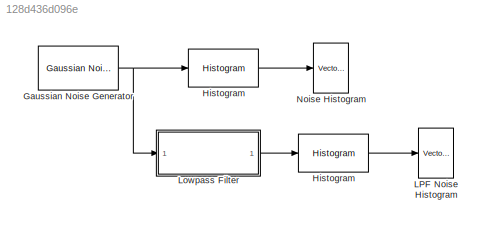
MODEL slx_128d436d096e
KIND model
BLOCK [Reference] Gaussian Noise Generator  REF=commnoisgen2/Gaussian Noise
Generator
  Ports = [0, 1]
  SourceBlock = commnoisgen2/Gaussian Noise\nGenerator
  SourceType = Gaussian Noise Generator
  Ts = 2e-5
  d = 1
  frameBased = off
  m = 10
  orient = on
  outDataType = double
  s = randseed
  sampPerFrame = 1
BLOCK [Reference] Histogram  REF=dspstat3/Histogram
  Dimension = 1
  LockScale = off
  Ports = [1, 1]
  SourceBlock = dspstat3/Histogram
  SourceType = Histogram
  UserDataPersistent = on
  accumDataTypeStr = Inherit: Same as input
  accumFracLength = 30
  accumLastDataTypeStr = Inherit: Same as input
  accumMode = Same as input
  accumWordLength = 32
  additionalParams = off
  allowOverrides = on
  colComp = on
  nbins = 101
  normalized = off
  operateOver = Inherited (this choice will be removed - see release notes)
  overflowMode = off
  prodOutputDataTypeStr = Inherit: Same as input
  prodOutputFracLength = 30
  prodOutputLastDataTypeStr = Inherit: Same as input
  prodOutputMode = Same as input
  prodOutputWordLength = 32
  reset = on
  roundingMode = Floor
  run = on
  trigtype = None
  umax = 20
  umin = 0
BLOCK [Reference] Histogram   REF=dspstat3/Histogram
  Dimension = 1
  LockScale = off
  Ports = [1, 1]
  SourceBlock = dspstat3/Histogram
  SourceType = Histogram
  UserDataPersistent = on
  accumDataTypeStr = Inherit: Same as input
  accumFracLength = 30
  accumLastDataTypeStr = Inherit: Same as input
  accumMode = Same as input
  accumWordLength = 32
  additionalParams = off
  allowOverrides = on
  colComp = on
  nbins = 101
  normalized = off
  operateOver = Inherited (this choice will be removed - see release notes)
  overflowMode = off
  prodOutputDataTypeStr = Inherit: Same as input
  prodOutputFracLength = 30
  prodOutputLastDataTypeStr = Inherit: Same as input
  prodOutputMode = Same as input
  prodOutputWordLength = 32
  reset = on
  roundingMode = Floor
  run = on
  trigtype = None
  umax = 20
  umin = 0
BLOCK [Reference] LPF Noise Histogram  REF=dspsnks4/Vector
Scope
  AxisGrid = on
  AxisLegend = off
  AxisProperties = off
  AxisZoom = off
  DisplayProperties = off
  Domain = User-defined
  FigPos = get(0,'defaultfigureposition')
  FrameNumber = on
  HorizSpan = 1
  InheritXIncr = on
  LineMarkers = o
  LineProperties = off
  Memory = off
  OpenScopeAtSimStart = on
  OpenScopeImmediately = off
  Ports = [1]
  ScopeProperties = on
  ShowPortLabels = off
  SourceBlock = dspsnks4/Vector\nScope
  SourceType = Vector Scope
  XAxisParamsVer = 6.9
  XIncr = 1
  XLabel = Value
  XLimit = Auto
  XMax = 1
  XMin = 0
  XRange = [0...Fs/2]
  XStart = 0
  XUnits = Hertz
  YLabel = Histogram
  YMax = 10000
  YMin = 0
  YUnits = dB
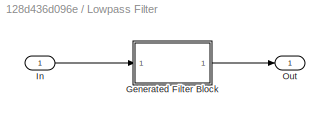
BLOCK [SubSystem] Lowpass Filter
  CopyFcn = fdesignblkfcn(gcbh, {'CopyFcn'});
  DialogController = fdesignblkfcn
  InitFcn = fdesignblkfcn(gcbh, {'InitFcn'});
  Ports = [1, 1]
  RequestExecContextInheritance = off
  UserDataPersistent = on
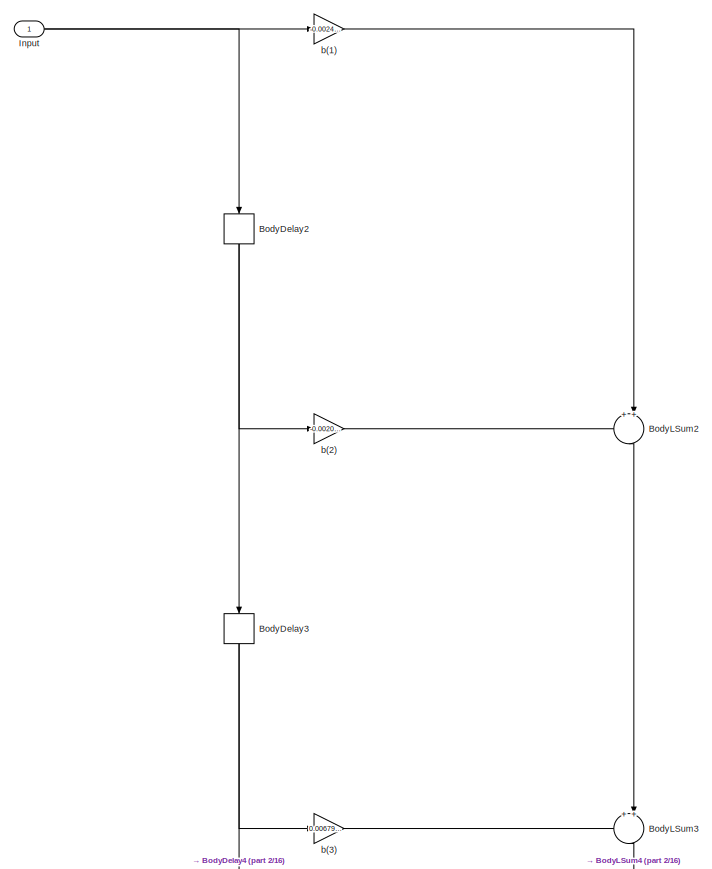
[diagram: Lowpass Filter/Generated Filter Block - part 1/16, full width, top band]
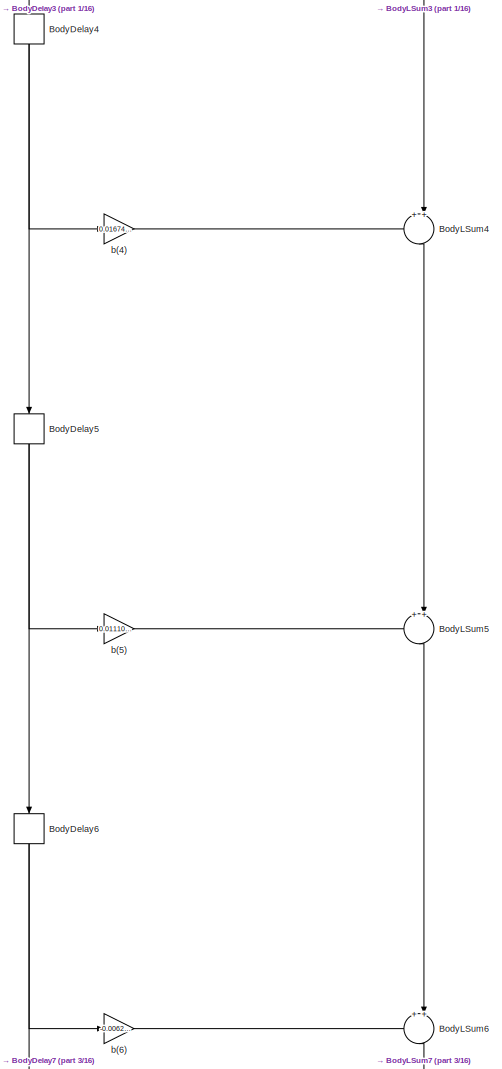
[diagram: Lowpass Filter/Generated Filter Block - part 2/16, top center region]
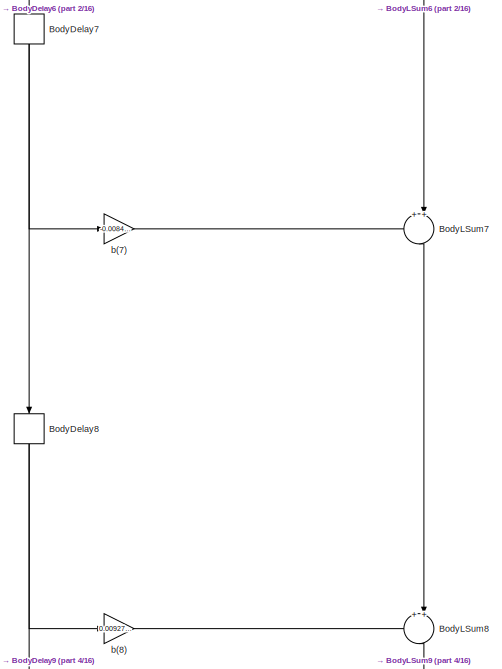
[diagram: Lowpass Filter/Generated Filter Block - part 3/16, top center region]
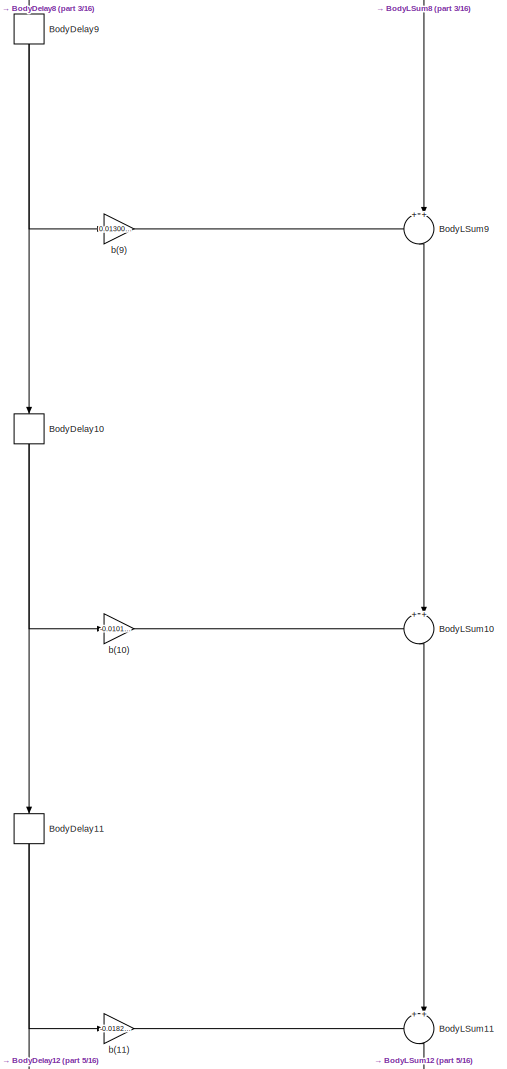
[diagram: Lowpass Filter/Generated Filter Block - part 4/16, top center region]
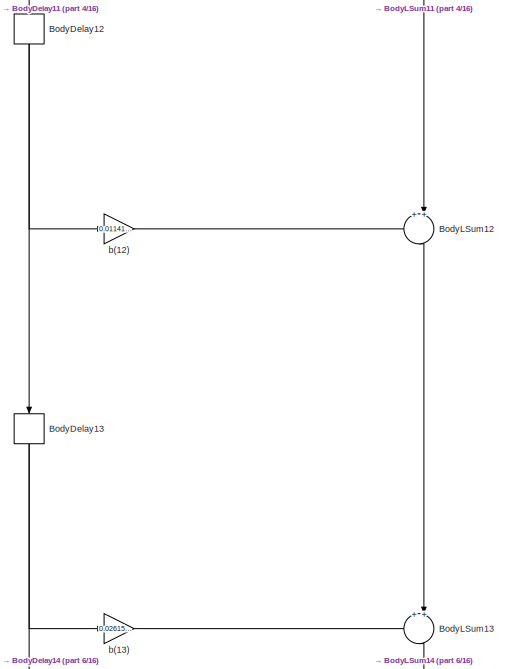
[diagram: Lowpass Filter/Generated Filter Block - part 5/16, top center region]
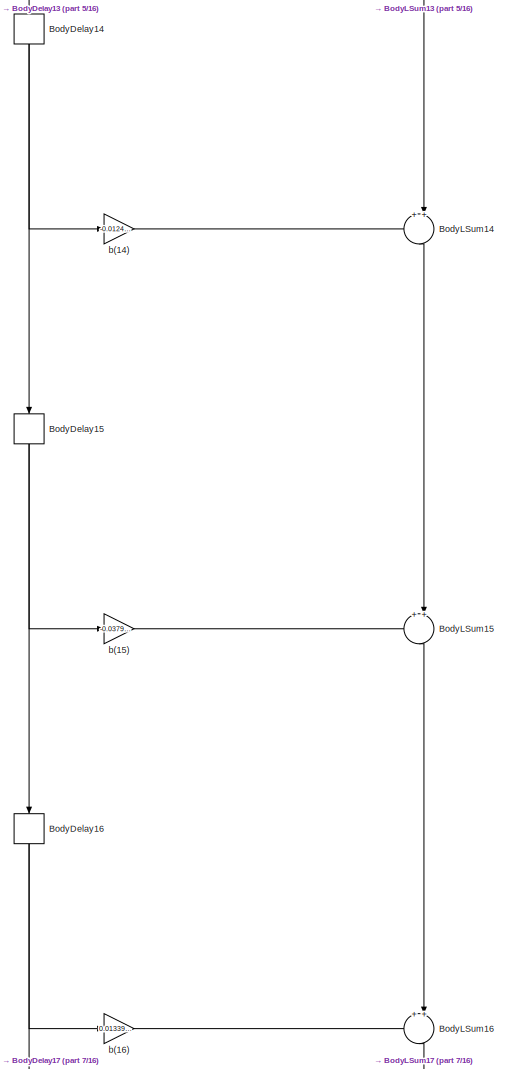
[diagram: Lowpass Filter/Generated Filter Block - part 6/16, top center region]
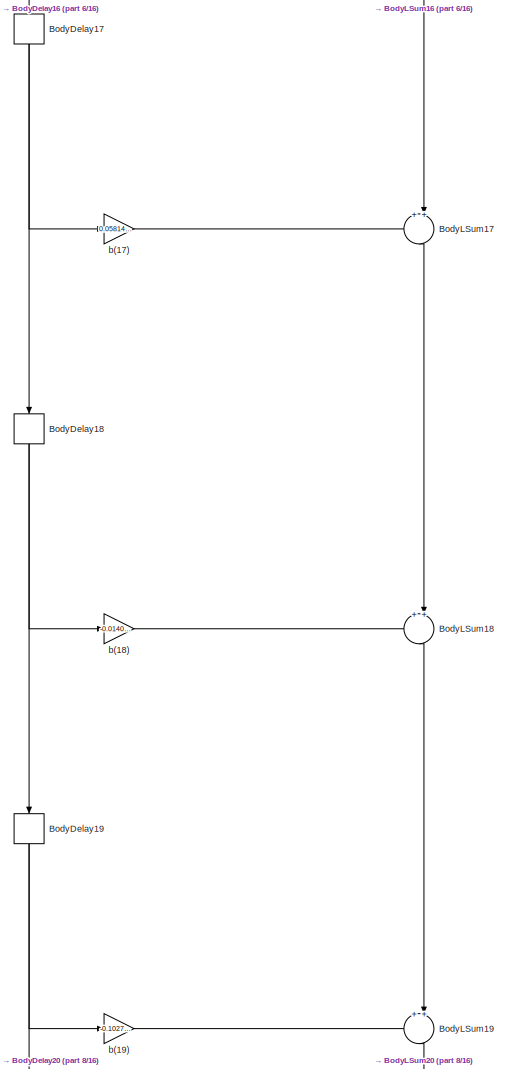
[diagram: Lowpass Filter/Generated Filter Block - part 7/16, central region]
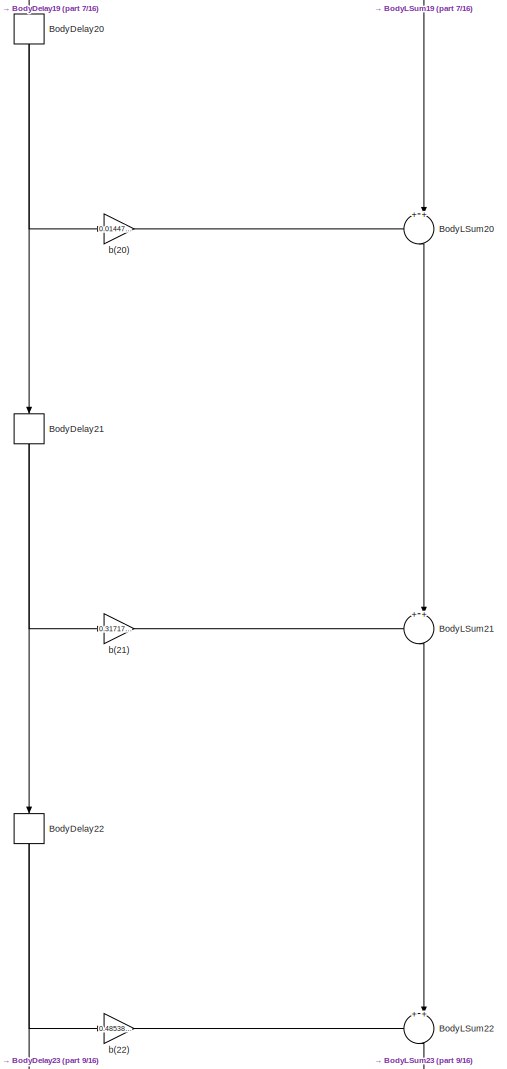
[diagram: Lowpass Filter/Generated Filter Block - part 8/16, central region]
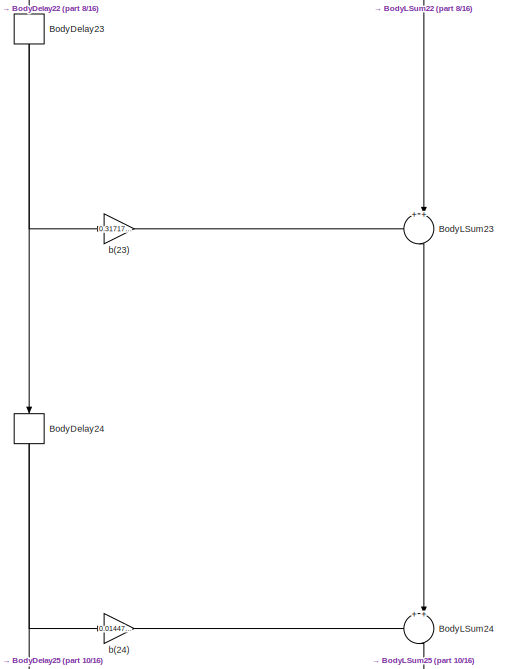
[diagram: Lowpass Filter/Generated Filter Block - part 9/16, central region]
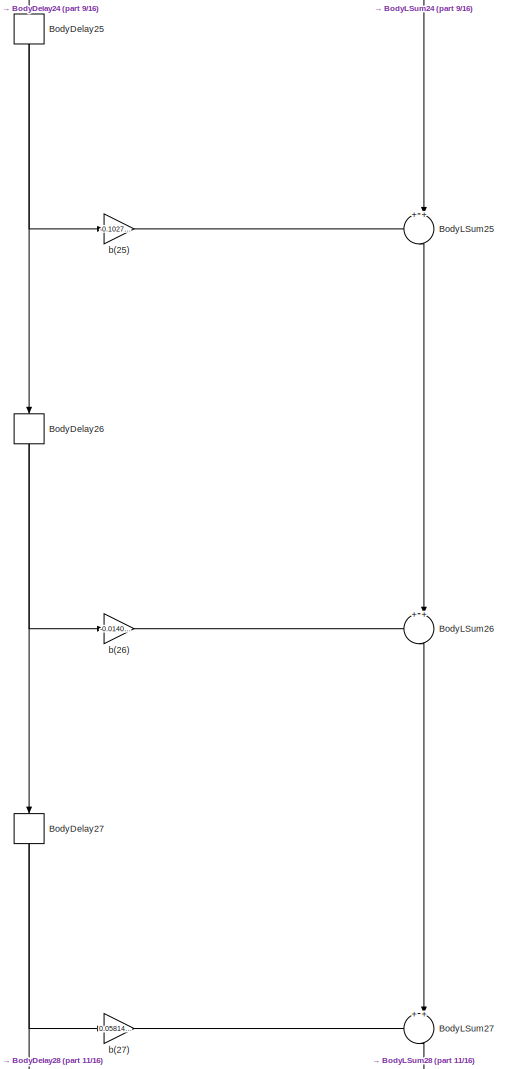
[diagram: Lowpass Filter/Generated Filter Block - part 10/16, central region]
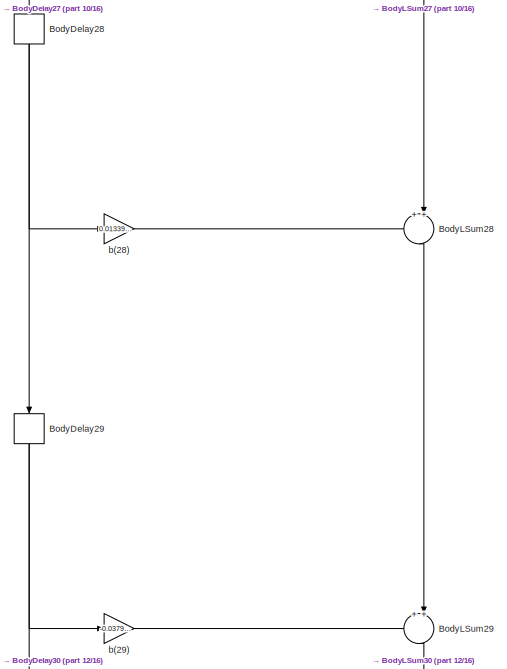
[diagram: Lowpass Filter/Generated Filter Block - part 11/16, central region]
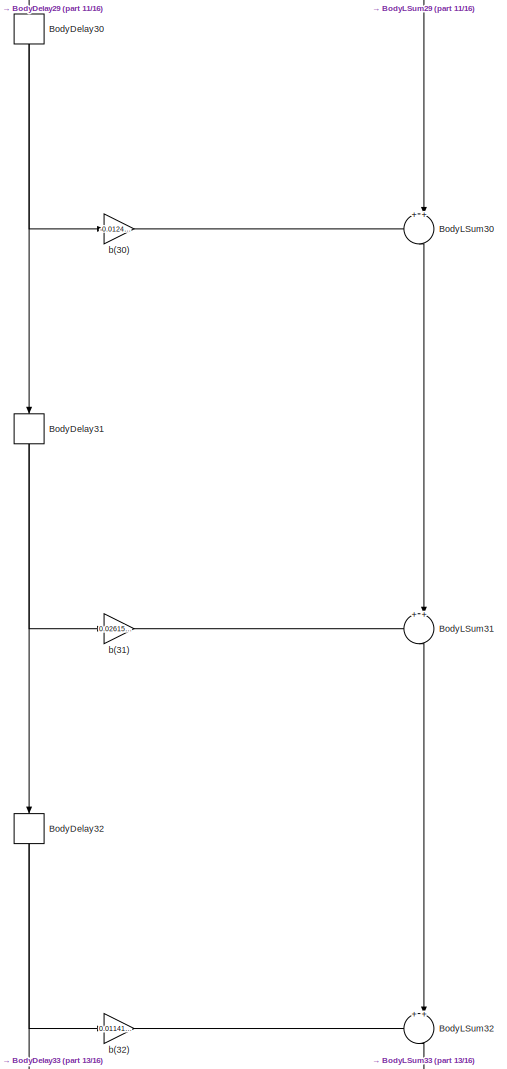
[diagram: Lowpass Filter/Generated Filter Block - part 12/16, bottom center region]
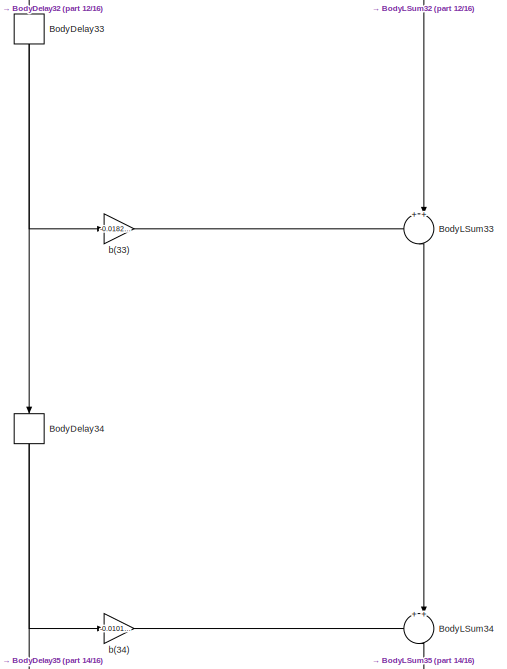
[diagram: Lowpass Filter/Generated Filter Block - part 13/16, bottom center region]
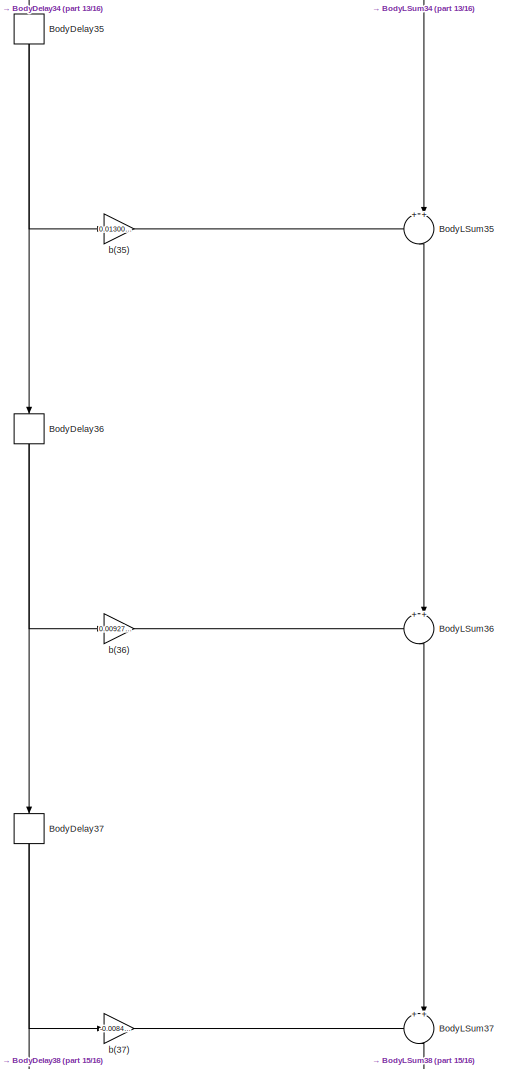
[diagram: Lowpass Filter/Generated Filter Block - part 14/16, bottom center region]
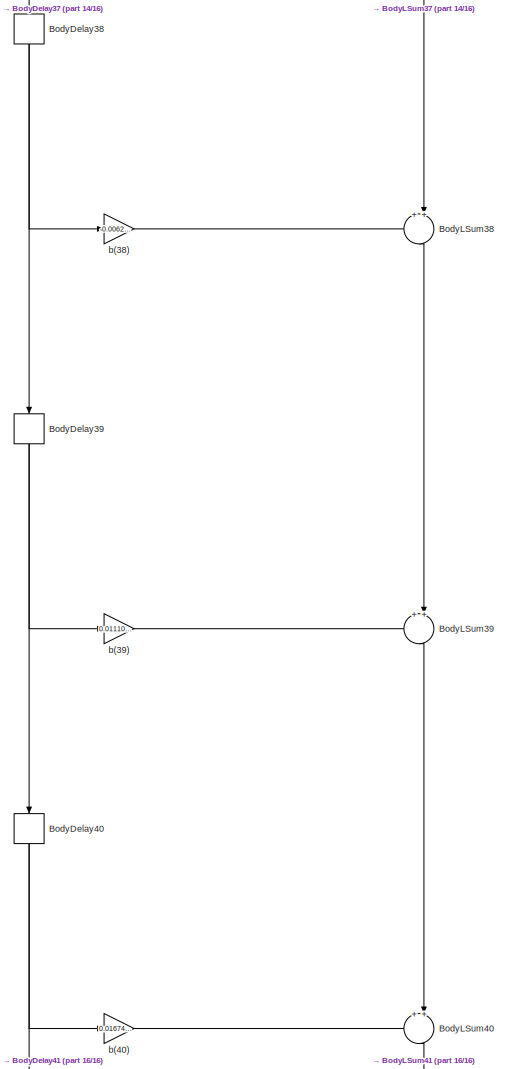
[diagram: Lowpass Filter/Generated Filter Block - part 15/16, bottom center region]
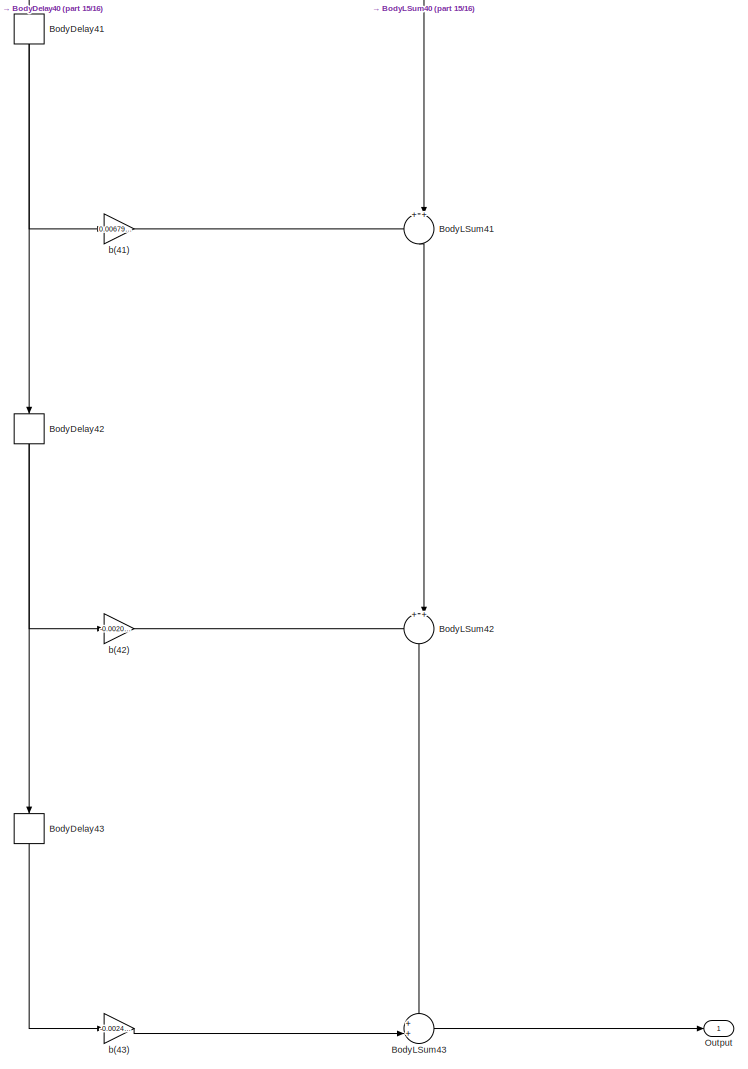
[diagram: Lowpass Filter/Generated Filter Block - part 16/16, full width, bottom band]
BLOCK [SubSystem] Lowpass Filter/Generated Filter Block
  ErrorFcn = dspFilterRealizedInBasicElemsAlgLoopErrFcnCallback
  Ports = [1, 1]
  RequestExecContextInheritance = off
  Tag = FilterWizardSubSystem
  UserDataPersistent = on
BLOCK [Delay] Lowpass Filter/Generated Filter Block/BodyDelay10
  DelayLength = 1
  InitialCondition = 0
  InputPortMap = u0
  InputProcessing = Inherited
  Ports = [1, 1]
BLOCK [Delay] Lowpass Filter/Generated Filter Block/BodyDelay11
  DelayLength = 1
  InitialCondition = 0
  InputPortMap = u0
  InputProcessing = Inherited
  Ports = [1, 1]
BLOCK [Delay] Lowpass Filter/Generated Filter Block/BodyDelay12
  DelayLength = 1
  InitialCondition = 0
  InputPortMap = u0
  InputProcessing = Inherited
  Ports = [1, 1]
BLOCK [Delay] Lowpass Filter/Generated Filter Block/BodyDelay13
  DelayLength = 1
  InitialCondition = 0
  InputPortMap = u0
  InputProcessing = Inherited
  Ports = [1, 1]
BLOCK [Delay] Lowpass Filter/Generated Filter Block/BodyDelay14
  DelayLength = 1
  InitialCondition = 0
  InputPortMap = u0
  InputProcessing = Inherited
  Ports = [1, 1]
BLOCK [Delay] Lowpass Filter/Generated Filter Block/BodyDelay15
  DelayLength = 1
  InitialCondition = 0
  InputPortMap = u0
  InputProcessing = Inherited
  Ports = [1, 1]
BLOCK [Delay] Lowpass Filter/Generated Filter Block/BodyDelay16
  DelayLength = 1
  InitialCondition = 0
  InputPortMap = u0
  InputProcessing = Inherited
  Ports = [1, 1]
BLOCK [Delay] Lowpass Filter/Generated Filter Block/BodyDelay17
  DelayLength = 1
  InitialCondition = 0
  InputPortMap = u0
  InputProcessing = Inherited
  Ports = [1, 1]
BLOCK [Delay] Lowpass Filter/Generated Filter Block/BodyDelay18
  DelayLength = 1
  InitialCondition = 0
  InputPortMap = u0
  InputProcessing = Inherited
  Ports = [1, 1]
BLOCK [Delay] Lowpass Filter/Generated Filter Block/BodyDelay19
  DelayLength = 1
  InitialCondition = 0
  InputPortMap = u0
  InputProcessing = Inherited
  Ports = [1, 1]
BLOCK [Delay] Lowpass Filter/Generated Filter Block/BodyDelay2
  DelayLength = 1
  InitialCondition = 0
  InputPortMap = u0
  InputProcessing = Inherited
  Ports = [1, 1]
BLOCK [Delay] Lowpass Filter/Generated Filter Block/BodyDelay20
  DelayLength = 1
  InitialCondition = 0
  InputPortMap = u0
  InputProcessing = Inherited
  Ports = [1, 1]
BLOCK [Delay] Lowpass Filter/Generated Filter Block/BodyDelay21
  DelayLength = 1
  InitialCondition = 0
  InputPortMap = u0
  InputProcessing = Inherited
  Ports = [1, 1]
BLOCK [Delay] Lowpass Filter/Generated Filter Block/BodyDelay22
  DelayLength = 1
  InitialCondition = 0
  InputPortMap = u0
  InputProcessing = Inherited
  Ports = [1, 1]
BLOCK [Delay] Lowpass Filter/Generated Filter Block/BodyDelay23
  DelayLength = 1
  InitialCondition = 0
  InputPortMap = u0
  InputProcessing = Inherited
  Ports = [1, 1]
BLOCK [Delay] Lowpass Filter/Generated Filter Block/BodyDelay24
  DelayLength = 1
  InitialCondition = 0
  InputPortMap = u0
  InputProcessing = Inherited
  Ports = [1, 1]
BLOCK [Delay] Lowpass Filter/Generated Filter Block/BodyDelay25
  DelayLength = 1
  InitialCondition = 0
  InputPortMap = u0
  InputProcessing = Inherited
  Ports = [1, 1]
BLOCK [Delay] Lowpass Filter/Generated Filter Block/BodyDelay26
  DelayLength = 1
  InitialCondition = 0
  InputPortMap = u0
  InputProcessing = Inherited
  Ports = [1, 1]
BLOCK [Delay] Lowpass Filter/Generated Filter Block/BodyDelay27
  DelayLength = 1
  InitialCondition = 0
  InputPortMap = u0
  InputProcessing = Inherited
  Ports = [1, 1]
BLOCK [Delay] Lowpass Filter/Generated Filter Block/BodyDelay28
  DelayLength = 1
  InitialCondition = 0
  InputPortMap = u0
  InputProcessing = Inherited
  Ports = [1, 1]
BLOCK [Delay] Lowpass Filter/Generated Filter Block/BodyDelay29
  DelayLength = 1
  InitialCondition = 0
  InputPortMap = u0
  InputProcessing = Inherited
  Ports = [1, 1]
BLOCK [Delay] Lowpass Filter/Generated Filter Block/BodyDelay3
  DelayLength = 1
  InitialCondition = 0
  InputPortMap = u0
  InputProcessing = Inherited
  Ports = [1, 1]
BLOCK [Delay] Lowpass Filter/Generated Filter Block/BodyDelay30
  DelayLength = 1
  InitialCondition = 0
  InputPortMap = u0
  InputProcessing = Inherited
  Ports = [1, 1]
BLOCK [Delay] Lowpass Filter/Generated Filter Block/BodyDelay31
  DelayLength = 1
  InitialCondition = 0
  InputPortMap = u0
  InputProcessing = Inherited
  Ports = [1, 1]
BLOCK [Delay] Lowpass Filter/Generated Filter Block/BodyDelay32
  DelayLength = 1
  InitialCondition = 0
  InputPortMap = u0
  InputProcessing = Inherited
  Ports = [1, 1]
BLOCK [Delay] Lowpass Filter/Generated Filter Block/BodyDelay33
  DelayLength = 1
  InitialCondition = 0
  InputPortMap = u0
  InputProcessing = Inherited
  Ports = [1, 1]
BLOCK [Delay] Lowpass Filter/Generated Filter Block/BodyDelay34
  DelayLength = 1
  InitialCondition = 0
  InputPortMap = u0
  InputProcessing = Inherited
  Ports = [1, 1]
BLOCK [Delay] Lowpass Filter/Generated Filter Block/BodyDelay35
  DelayLength = 1
  InitialCondition = 0
  InputPortMap = u0
  InputProcessing = Inherited
  Ports = [1, 1]
BLOCK [Delay] Lowpass Filter/Generated Filter Block/BodyDelay36
  DelayLength = 1
  InitialCondition = 0
  InputPortMap = u0
  InputProcessing = Inherited
  Ports = [1, 1]
BLOCK [Delay] Lowpass Filter/Generated Filter Block/BodyDelay37
  DelayLength = 1
  InitialCondition = 0
  InputPortMap = u0
  InputProcessing = Inherited
  Ports = [1, 1]
BLOCK [Delay] Lowpass Filter/Generated Filter Block/BodyDelay38
  DelayLength = 1
  InitialCondition = 0
  InputPortMap = u0
  InputProcessing = Inherited
  Ports = [1, 1]
BLOCK [Delay] Lowpass Filter/Generated Filter Block/BodyDelay39
  DelayLength = 1
  InitialCondition = 0
  InputPortMap = u0
  InputProcessing = Inherited
  Ports = [1, 1]
BLOCK [Delay] Lowpass Filter/Generated Filter Block/BodyDelay4
  DelayLength = 1
  InitialCondition = 0
  InputPortMap = u0
  InputProcessing = Inherited
  Ports = [1, 1]
BLOCK [Delay] Lowpass Filter/Generated Filter Block/BodyDelay40
  DelayLength = 1
  InitialCondition = 0
  InputPortMap = u0
  InputProcessing = Inherited
  Ports = [1, 1]
BLOCK [Delay] Lowpass Filter/Generated Filter Block/BodyDelay41
  DelayLength = 1
  InitialCondition = 0
  InputPortMap = u0
  InputProcessing = Inherited
  Ports = [1, 1]
BLOCK [Delay] Lowpass Filter/Generated Filter Block/BodyDelay42
  DelayLength = 1
  InitialCondition = 0
  InputPortMap = u0
  InputProcessing = Inherited
  Ports = [1, 1]
BLOCK [Delay] Lowpass Filter/Generated Filter Block/BodyDelay43
  DelayLength = 1
  InitialCondition = 0
  InputPortMap = u0
  InputProcessing = Inherited
  Ports = [1, 1]
BLOCK [Delay] Lowpass Filter/Generated Filter Block/BodyDelay5
  DelayLength = 1
  InitialCondition = 0
  InputPortMap = u0
  InputProcessing = Inherited
  Ports = [1, 1]
BLOCK [Delay] Lowpass Filter/Generated Filter Block/BodyDelay6
  DelayLength = 1
  InitialCondition = 0
  InputPortMap = u0
  InputProcessing = Inherited
  Ports = [1, 1]
BLOCK [Delay] Lowpass Filter/Generated Filter Block/BodyDelay7
  DelayLength = 1
  InitialCondition = 0
  InputPortMap = u0
  InputProcessing = Inherited
  Ports = [1, 1]
BLOCK [Delay] Lowpass Filter/Generated Filter Block/BodyDelay8
  DelayLength = 1
  InitialCondition = 0
  InputPortMap = u0
  InputProcessing = Inherited
  Ports = [1, 1]
BLOCK [Delay] Lowpass Filter/Generated Filter Block/BodyDelay9
  DelayLength = 1
  InitialCondition = 0
  InputPortMap = u0
  InputProcessing = Inherited
  Ports = [1, 1]
BLOCK [Sum] Lowpass Filter/Generated Filter Block/BodyLSum10
  IconShape = round
  InputSameDT = off
  Inputs = ++|
  Ports = [2, 1]
  RndMeth = Nearest
BLOCK [Sum] Lowpass Filter/Generated Filter Block/BodyLSum11
  IconShape = round
  InputSameDT = off
  Inputs = ++|
  Ports = [2, 1]
  RndMeth = Nearest
BLOCK [Sum] Lowpass Filter/Generated Filter Block/BodyLSum12
  IconShape = round
  InputSameDT = off
  Inputs = ++|
  Ports = [2, 1]
  RndMeth = Nearest
BLOCK [Sum] Lowpass Filter/Generated Filter Block/BodyLSum13
  IconShape = round
  InputSameDT = off
  Inputs = ++|
  Ports = [2, 1]
  RndMeth = Nearest
BLOCK [Sum] Lowpass Filter/Generated Filter Block/BodyLSum14
  IconShape = round
  InputSameDT = off
  Inputs = ++|
  Ports = [2, 1]
  RndMeth = Nearest
BLOCK [Sum] Lowpass Filter/Generated Filter Block/BodyLSum15
  IconShape = round
  InputSameDT = off
  Inputs = ++|
  Ports = [2, 1]
  RndMeth = Nearest
BLOCK [Sum] Lowpass Filter/Generated Filter Block/BodyLSum16
  IconShape = round
  InputSameDT = off
  Inputs = ++|
  Ports = [2, 1]
  RndMeth = Nearest
BLOCK [Sum] Lowpass Filter/Generated Filter Block/BodyLSum17
  IconShape = round
  InputSameDT = off
  Inputs = ++|
  Ports = [2, 1]
  RndMeth = Nearest
BLOCK [Sum] Lowpass Filter/Generated Filter Block/BodyLSum18
  IconShape = round
  InputSameDT = off
  Inputs = ++|
  Ports = [2, 1]
  RndMeth = Nearest
BLOCK [Sum] Lowpass Filter/Generated Filter Block/BodyLSum19
  IconShape = round
  InputSameDT = off
  Inputs = ++|
  Ports = [2, 1]
  RndMeth = Nearest
BLOCK [Sum] Lowpass Filter/Generated Filter Block/BodyLSum2
  IconShape = round
  InputSameDT = off
  Inputs = ++|
  Ports = [2, 1]
  RndMeth = Nearest
BLOCK [Sum] Lowpass Filter/Generated Filter Block/BodyLSum20
  IconShape = round
  InputSameDT = off
  Inputs = ++|
  Ports = [2, 1]
  RndMeth = Nearest
BLOCK [Sum] Lowpass Filter/Generated Filter Block/BodyLSum21
  IconShape = round
  InputSameDT = off
  Inputs = ++|
  Ports = [2, 1]
  RndMeth = Nearest
BLOCK [Sum] Lowpass Filter/Generated Filter Block/BodyLSum22
  IconShape = round
  InputSameDT = off
  Inputs = ++|
  Ports = [2, 1]
  RndMeth = Nearest
BLOCK [Sum] Lowpass Filter/Generated Filter Block/BodyLSum23
  IconShape = round
  InputSameDT = off
  Inputs = ++|
  Ports = [2, 1]
  RndMeth = Nearest
BLOCK [Sum] Lowpass Filter/Generated Filter Block/BodyLSum24
  IconShape = round
  InputSameDT = off
  Inputs = ++|
  Ports = [2, 1]
  RndMeth = Nearest
BLOCK [Sum] Lowpass Filter/Generated Filter Block/BodyLSum25
  IconShape = round
  InputSameDT = off
  Inputs = ++|
  Ports = [2, 1]
  RndMeth = Nearest
BLOCK [Sum] Lowpass Filter/Generated Filter Block/BodyLSum26
  IconShape = round
  InputSameDT = off
  Inputs = ++|
  Ports = [2, 1]
  RndMeth = Nearest
BLOCK [Sum] Lowpass Filter/Generated Filter Block/BodyLSum27
  IconShape = round
  InputSameDT = off
  Inputs = ++|
  Ports = [2, 1]
  RndMeth = Nearest
BLOCK [Sum] Lowpass Filter/Generated Filter Block/BodyLSum28
  IconShape = round
  InputSameDT = off
  Inputs = ++|
  Ports = [2, 1]
  RndMeth = Nearest
BLOCK [Sum] Lowpass Filter/Generated Filter Block/BodyLSum29
  IconShape = round
  InputSameDT = off
  Inputs = ++|
  Ports = [2, 1]
  RndMeth = Nearest
BLOCK [Sum] Lowpass Filter/Generated Filter Block/BodyLSum3
  IconShape = round
  InputSameDT = off
  Inputs = ++|
  Ports = [2, 1]
  RndMeth = Nearest
BLOCK [Sum] Lowpass Filter/Generated Filter Block/BodyLSum30
  IconShape = round
  InputSameDT = off
  Inputs = ++|
  Ports = [2, 1]
  RndMeth = Nearest
BLOCK [Sum] Lowpass Filter/Generated Filter Block/BodyLSum31
  IconShape = round
  InputSameDT = off
  Inputs = ++|
  Ports = [2, 1]
  RndMeth = Nearest
BLOCK [Sum] Lowpass Filter/Generated Filter Block/BodyLSum32
  IconShape = round
  InputSameDT = off
  Inputs = ++|
  Ports = [2, 1]
  RndMeth = Nearest
BLOCK [Sum] Lowpass Filter/Generated Filter Block/BodyLSum33
  IconShape = round
  InputSameDT = off
  Inputs = ++|
  Ports = [2, 1]
  RndMeth = Nearest
BLOCK [Sum] Lowpass Filter/Generated Filter Block/BodyLSum34
  IconShape = round
  InputSameDT = off
  Inputs = ++|
  Ports = [2, 1]
  RndMeth = Nearest
BLOCK [Sum] Lowpass Filter/Generated Filter Block/BodyLSum35
  IconShape = round
  InputSameDT = off
  Inputs = ++|
  Ports = [2, 1]
  RndMeth = Nearest
BLOCK [Sum] Lowpass Filter/Generated Filter Block/BodyLSum36
  IconShape = round
  InputSameDT = off
  Inputs = ++|
  Ports = [2, 1]
  RndMeth = Nearest
BLOCK [Sum] Lowpass Filter/Generated Filter Block/BodyLSum37
  IconShape = round
  InputSameDT = off
  Inputs = ++|
  Ports = [2, 1]
  RndMeth = Nearest
BLOCK [Sum] Lowpass Filter/Generated Filter Block/BodyLSum38
  IconShape = round
  InputSameDT = off
  Inputs = ++|
  Ports = [2, 1]
  RndMeth = Nearest
BLOCK [Sum] Lowpass Filter/Generated Filter Block/BodyLSum39
  IconShape = round
  InputSameDT = off
  Inputs = ++|
  Ports = [2, 1]
  RndMeth = Nearest
BLOCK [Sum] Lowpass Filter/Generated Filter Block/BodyLSum4
  IconShape = round
  InputSameDT = off
  Inputs = ++|
  Ports = [2, 1]
  RndMeth = Nearest
BLOCK [Sum] Lowpass Filter/Generated Filter Block/BodyLSum40
  IconShape = round
  InputSameDT = off
  Inputs = ++|
  Ports = [2, 1]
  RndMeth = Nearest
BLOCK [Sum] Lowpass Filter/Generated Filter Block/BodyLSum41
  IconShape = round
  InputSameDT = off
  Inputs = ++|
  Ports = [2, 1]
  RndMeth = Nearest
BLOCK [Sum] Lowpass Filter/Generated Filter Block/BodyLSum42
  IconShape = round
  InputSameDT = off
  Inputs = ++|
  Ports = [2, 1]
  RndMeth = Nearest
BLOCK [Sum] Lowpass Filter/Generated Filter Block/BodyLSum43
  IconShape = round
  InputSameDT = off
  Inputs = ++|
  Ports = [2, 1]
  RndMeth = Nearest
BLOCK [Sum] Lowpass Filter/Generated Filter Block/BodyLSum5
  IconShape = round
  InputSameDT = off
  Inputs = ++|
  Ports = [2, 1]
  RndMeth = Nearest
BLOCK [Sum] Lowpass Filter/Generated Filter Block/BodyLSum6
  IconShape = round
  InputSameDT = off
  Inputs = ++|
  Ports = [2, 1]
  RndMeth = Nearest
BLOCK [Sum] Lowpass Filter/Generated Filter Block/BodyLSum7
  IconShape = round
  InputSameDT = off
  Inputs = ++|
  Ports = [2, 1]
  RndMeth = Nearest
BLOCK [Sum] Lowpass Filter/Generated Filter Block/BodyLSum8
  IconShape = round
  InputSameDT = off
  Inputs = ++|
  Ports = [2, 1]
  RndMeth = Nearest
BLOCK [Sum] Lowpass Filter/Generated Filter Block/BodyLSum9
  IconShape = round
  InputSameDT = off
  Inputs = ++|
  Ports = [2, 1]
  RndMeth = Nearest
BLOCK [Inport] Lowpass Filter/Generated Filter Block/Input
  IconDisplay = Port number
BLOCK [Outport] Lowpass Filter/Generated Filter Block/Output
  IconDisplay = Port number
BLOCK [Gain] Lowpass Filter/Generated Filter Block/b(1)
  Gain = -0.0024184515821340179
  ParamDataTypeStr = double
  RndMeth = Nearest
BLOCK [Gain] Lowpass Filter/Generated Filter Block/b(10)
  Gain = -0.010109941080713182
  ParamDataTypeStr = double
  RndMeth = Nearest
BLOCK [Gain] Lowpass Filter/Generated Filter Block/b(11)
  Gain = -0.018276710028363573
  ParamDataTypeStr = double
  RndMeth = Nearest
BLOCK [Gain] Lowpass Filter/Generated Filter Block/b(12)
  Gain = 0.011417030384770108
  ParamDataTypeStr = double
  RndMeth = Nearest
BLOCK [Gain] Lowpass Filter/Generated Filter Block/b(13)
  Gain = 0.026158313267711123
  ParamDataTypeStr = double
  RndMeth = Nearest
BLOCK [Gain] Lowpass Filter/Generated Filter Block/b(14)
  Gain = -0.012494520549028909
  ParamDataTypeStr = double
  RndMeth = Nearest
BLOCK [Gain] Lowpass Filter/Generated Filter Block/b(15)
  Gain = -0.037985890726300604
  ParamDataTypeStr = double
  RndMeth = Nearest
BLOCK [Gain] Lowpass Filter/Generated Filter Block/b(16)
  Gain = 0.013398022406508153
  ParamDataTypeStr = double
  RndMeth = Nearest
BLOCK [Gain] Lowpass Filter/Generated Filter Block/b(17)
  Gain = 0.058143561333869991
  ParamDataTypeStr = double
  RndMeth = Nearest
BLOCK [Gain] Lowpass Filter/Generated Filter Block/b(18)
  Gain = -0.014068918704128746
  ParamDataTypeStr = double
  RndMeth = Nearest
BLOCK [Gain] Lowpass Filter/Generated Filter Block/b(19)
  Gain = -0.10272737868066546
  ParamDataTypeStr = double
  RndMeth = Nearest
BLOCK [Gain] Lowpass Filter/Generated Filter Block/b(2)
  Gain = -0.0020659659418839718
  ParamDataTypeStr = double
  RndMeth = Nearest
BLOCK [Gain] Lowpass Filter/Generated Filter Block/b(20)
  Gain = 0.01447625788339814
  ParamDataTypeStr = double
  RndMeth = Nearest
BLOCK [Gain] Lowpass Filter/Generated Filter Block/b(21)
  Gain = 0.31717292271198066
  ParamDataTypeStr = double
  RndMeth = Nearest
BLOCK [Gain] Lowpass Filter/Generated Filter Block/b(22)
  Gain = 0.48538538772192297
  ParamDataTypeStr = double
  RndMeth = Nearest
BLOCK [Gain] Lowpass Filter/Generated Filter Block/b(23)
  Gain = 0.31717292271198066
  ParamDataTypeStr = double
  RndMeth = Nearest
BLOCK [Gain] Lowpass Filter/Generated Filter Block/b(24)
  Gain = 0.01447625788339814
  ParamDataTypeStr = double
  RndMeth = Nearest
BLOCK [Gain] Lowpass Filter/Generated Filter Block/b(25)
  Gain = -0.10272737868066546
  ParamDataTypeStr = double
  RndMeth = Nearest
BLOCK [Gain] Lowpass Filter/Generated Filter Block/b(26)
  Gain = -0.014068918704128746
  ParamDataTypeStr = double
  RndMeth = Nearest
BLOCK [Gain] Lowpass Filter/Generated Filter Block/b(27)
  Gain = 0.058143561333869991
  ParamDataTypeStr = double
  RndMeth = Nearest
BLOCK [Gain] Lowpass Filter/Generated Filter Block/b(28)
  Gain = 0.013398022406508153
  ParamDataTypeStr = double
  RndMeth = Nearest
BLOCK [Gain] Lowpass Filter/Generated Filter Block/b(29)
  Gain = -0.037985890726300604
  ParamDataTypeStr = double
  RndMeth = Nearest
BLOCK [Gain] Lowpass Filter/Generated Filter Block/b(3)
  Gain = 0.0067960727631209894
  ParamDataTypeStr = double
  RndMeth = Nearest
BLOCK [Gain] Lowpass Filter/Generated Filter Block/b(30)
  Gain = -0.012494520549028909
  ParamDataTypeStr = double
  RndMeth = Nearest
BLOCK [Gain] Lowpass Filter/Generated Filter Block/b(31)
  Gain = 0.026158313267711123
  ParamDataTypeStr = double
  RndMeth = Nearest
BLOCK [Gain] Lowpass Filter/Generated Filter Block/b(32)
  Gain = 0.011417030384770108
  ParamDataTypeStr = double
  RndMeth = Nearest
BLOCK [Gain] Lowpass Filter/Generated Filter Block/b(33)
  Gain = -0.018276710028363573
  ParamDataTypeStr = double
  RndMeth = Nearest
BLOCK [Gain] Lowpass Filter/Generated Filter Block/b(34)
  Gain = -0.010109941080713182
  ParamDataTypeStr = double
  RndMeth = Nearest
BLOCK [Gain] Lowpass Filter/Generated Filter Block/b(35)
  Gain = 0.013006159969671954
  ParamDataTypeStr = double
  RndMeth = Nearest
BLOCK [Gain] Lowpass Filter/Generated Filter Block/b(36)
  Gain = 0.0092748924319700672
  ParamDataTypeStr = double
  RndMeth = Nearest
BLOCK [Gain] Lowpass Filter/Generated Filter Block/b(37)
  Gain = -0.0084078268149706762
  ParamDataTypeStr = double
  RndMeth = Nearest
BLOCK [Gain] Lowpass Filter/Generated Filter Block/b(38)
  Gain = -0.0062562536117661185
  ParamDataTypeStr = double
  RndMeth = Nearest
BLOCK [Gain] Lowpass Filter/Generated Filter Block/b(39)
  Gain = 0.011103324338448696
  ParamDataTypeStr = double
  RndMeth = Nearest
BLOCK [Gain] Lowpass Filter/Generated Filter Block/b(4)
  Gain = 0.016745537375577647
  ParamDataTypeStr = double
  RndMeth = Nearest
BLOCK [Gain] Lowpass Filter/Generated Filter Block/b(40)
  Gain = 0.016745537375577647
  ParamDataTypeStr = double
  RndMeth = Nearest
BLOCK [Gain] Lowpass Filter/Generated Filter Block/b(41)
  Gain = 0.0067960727631209894
  ParamDataTypeStr = double
  RndMeth = Nearest
BLOCK [Gain] Lowpass Filter/Generated Filter Block/b(42)
  Gain = -0.0020659659418839718
  ParamDataTypeStr = double
  RndMeth = Nearest
BLOCK [Gain] Lowpass Filter/Generated Filter Block/b(43)
  Gain = -0.0024184515821340179
  ParamDataTypeStr = double
  RndMeth = Nearest
BLOCK [Gain] Lowpass Filter/Generated Filter Block/b(5)
  Gain = 0.011103324338448696
  ParamDataTypeStr = double
  RndMeth = Nearest
BLOCK [Gain] Lowpass Filter/Generated Filter Block/b(6)
  Gain = -0.0062562536117661185
  ParamDataTypeStr = double
  RndMeth = Nearest
BLOCK [Gain] Lowpass Filter/Generated Filter Block/b(7)
  Gain = -0.0084078268149706762
  ParamDataTypeStr = double
  RndMeth = Nearest
BLOCK [Gain] Lowpass Filter/Generated Filter Block/b(8)
  Gain = 0.0092748924319700672
  ParamDataTypeStr = double
  RndMeth = Nearest
BLOCK [Gain] Lowpass Filter/Generated Filter Block/b(9)
  Gain = 0.013006159969671954
  ParamDataTypeStr = double
  RndMeth = Nearest
BLOCK [Inport] Lowpass Filter/In
  IconDisplay = Port number
BLOCK [Outport] Lowpass Filter/Out
  IconDisplay = Port number
BLOCK [Reference] Noise Histogram  REF=dspsnks4/Vector
Scope
  AxisGrid = on
  AxisLegend = off
  AxisProperties = off
  AxisZoom = off
  DisplayProperties = off
  Domain = User-defined
  FigPos = get(0,'defaultfigureposition')
  FrameNumber = on
  HorizSpan = 1
  InheritXIncr = on
  LineMarkers = o
  LineProperties = off
  Memory = off
  OpenScopeAtSimStart = on
  OpenScopeImmediately = off
  Ports = [1]
  ScopeProperties = on
  ShowPortLabels = off
  SourceBlock = dspsnks4/Vector\nScope
  SourceType = Vector Scope
  XAxisParamsVer = 6.9
  XIncr = 1
  XLabel = Value
  XLimit = Auto
  XMax = 1
  XMin = 0
  XRange = [0...Fs/2]
  XStart = 0
  XUnits = Hertz
  YLabel = Histogram
  YMax = 10000
  YMin = 0
  YUnits = dB
NET Gaussian Noise Generator:1 -> Histogram:1, Lowpass Filter:1
LINE Histogram :1 -> LPF Noise Histogram:1
LINE Histogram:1 -> Noise Histogram:1
LINE Lowpass Filter:1 -> Histogram :1
note: NET lines group one-source signal fan-out (src -> all destinations, sorted); 1:1 wires keep LINE
